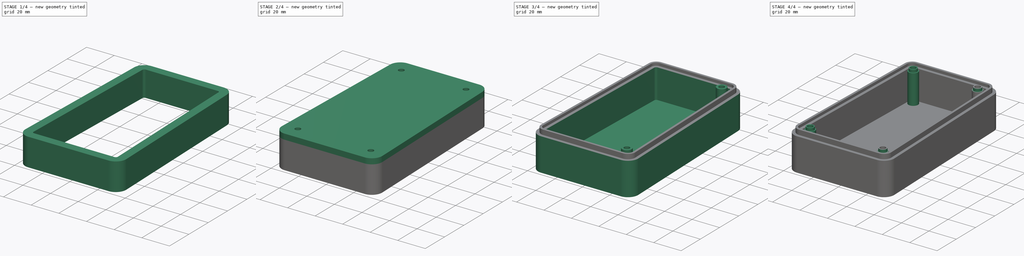
[diagram: build sequence overview — one tinted view per stage of 4, left to right]
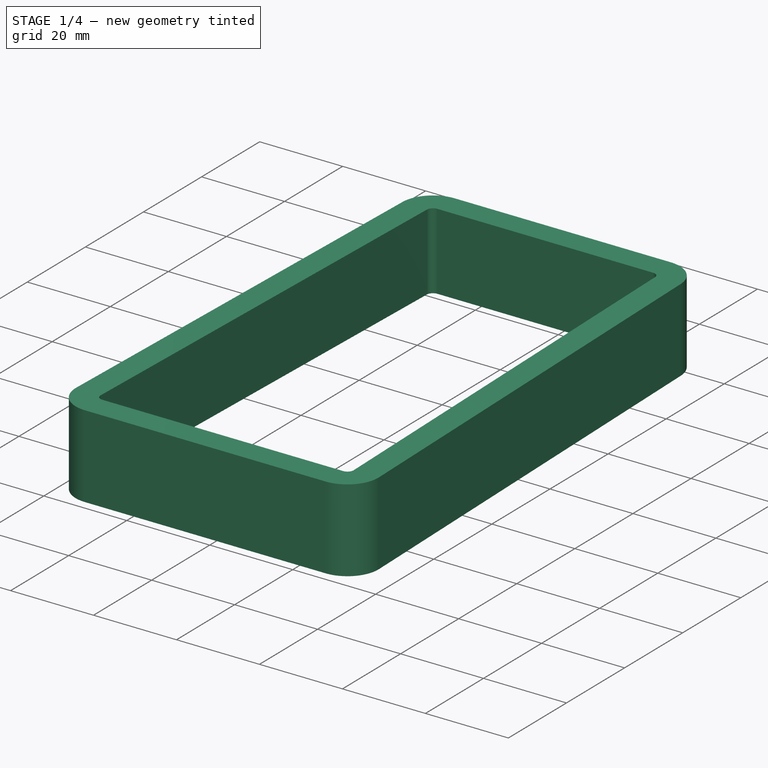
[diagram: stage 1 of 4 — iso view after this stage's code; geometry added in this stage tinted green]
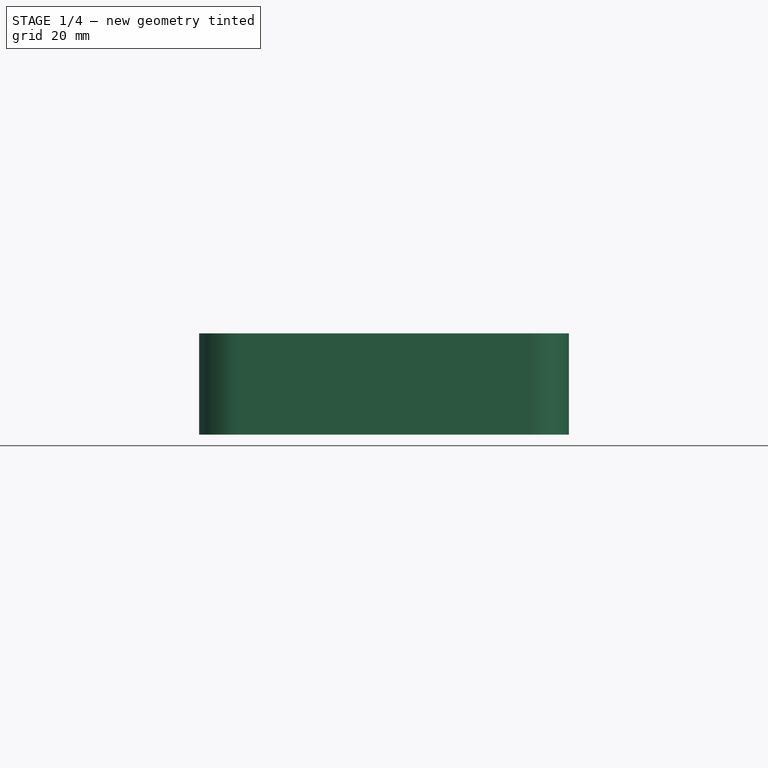
[diagram: stage 1 of 4 — front view after this stage's code; geometry added in this stage tinted green]
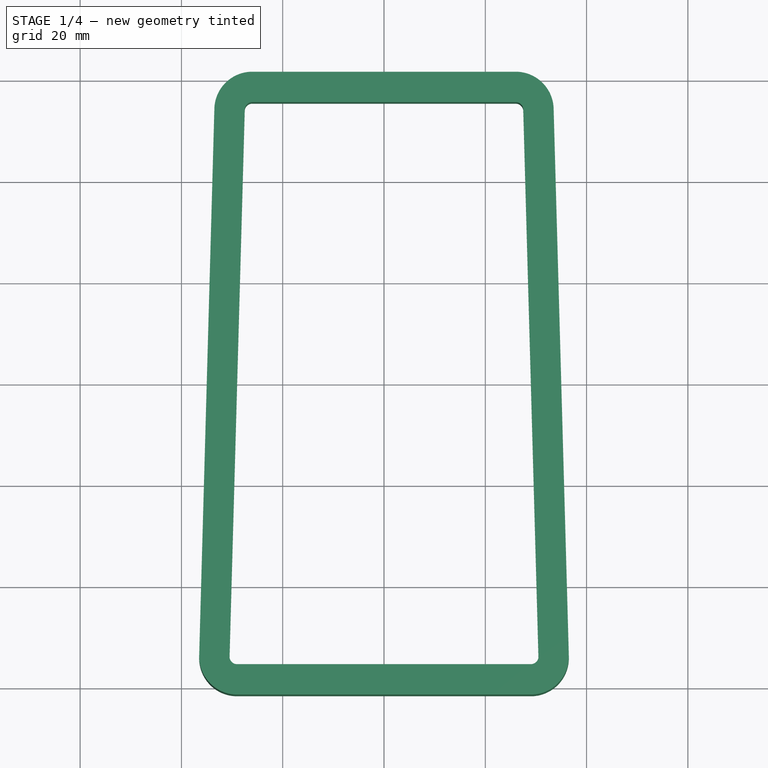
[diagram: stage 1 of 4 — top view after this stage's code; geometry added in this stage tinted green]
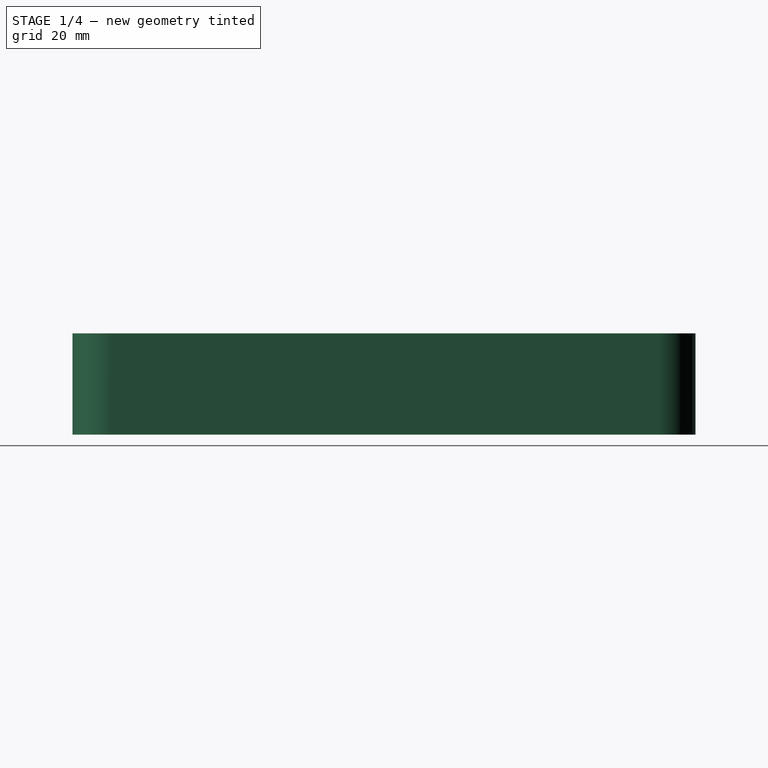
[diagram: stage 1 of 4 — right view after this stage's code; geometry added in this stage tinted green]
FCSTD DOCUMENT  (FreeCAD 0.20R29410 (Git))
Label: valve_box_rev_0.1
License: All rights reserved
LicenseURL: http://en.wikipedia.org/wiki/All_rights_reserved
objects: Sketcher::SketchObject×9, PartDesign::Mirrored×3, PartDesign::Pad×3, PartDesign::SubShapeBinder×3, PartDesign::AdditivePipe×2, PartDesign::Pocket×2, PartDesign::Body×2
note: 31 computed .brp shape members not serialized (recipe doc carries the construction recipe); baked Part::Feature solids carry a one-line shape summary decoded from their .brp

FEATURE [Sketcher::SketchObject] Sketch
  FullyConstrained = true
  MapMode = 5
  Support = -> [XY_Plane]
  sketch-geometry (12):
    g0: LineSegment StartX=-26 StartY=60 StartZ=0 EndX=0 EndY=60 EndZ=0
    g1: LineSegment StartX=0 StartY=60 StartZ=0 EndX=0 EndY=-60 EndZ=0
    g2: LineSegment StartX=0 StartY=-60 StartZ=0 EndX=-29 EndY=-60 EndZ=0
    g3: LineSegment StartX=-35 StartY=-54 StartZ=0 EndX=-32 EndY=54 EndZ=0
    g4: ArcOfCircle CenterX=-29 CenterY=-54 CenterZ=0 NormalX=0 NormalY=0 NormalZ=1 AngleXU=0 Radius=6 StartAngle=3.14159 EndAngle=4.71239
    g5: ArcOfCircle CenterX=-26 CenterY=54 CenterZ=0 NormalX=0 NormalY=0 NormalZ=1 AngleXU=0 Radius=6 StartAngle=1.5708 EndAngle=3.14159
    g6: LineSegment StartX=-26 StartY=60 StartZ=0 EndX=-32 EndY=60 EndZ=0
    g7: LineSegment StartX=-32 StartY=60 StartZ=0 EndX=-32 EndY=54 EndZ=0
    g8: LineSegment StartX=-32 StartY=54 StartZ=0 EndX=-26 EndY=60 EndZ=0
    g9: LineSegment StartX=-29 StartY=-60 StartZ=0 EndX=-35 EndY=-60 EndZ=0
    g10: LineSegment StartX=-35 StartY=-60 StartZ=0 EndX=-35 EndY=-54 EndZ=0
    g11: LineSegment StartX=-35 StartY=-54 StartZ=0 EndX=-29 EndY=-60 EndZ=0
  constraints (31):
    c: Coincident(g0,g1)
    c: Coincident(g1,g2)
    c: Horizontal(g0)
    c: Horizontal(g2)
    c: Vertical(g1)
    c: Symmetric(g1,g0,g-1)
    c: DistanceY(g1,g0) = 120
    c: Horizontal(g6)
    c: Coincident(g6,g7)
    c: Vertical(g7)
    c: DistanceX(g6,g0) = 32
    c: Coincident(g3,g7)
    c: Coincident(g0,g6)
    c: Coincident(g5,g0)
    c: Coincident(g5,g3)
    c: Coincident(g8,g3)
    c: Coincident(g8,g0)
    c: Symmetric(g5,g6,g8)
    c: Radius(g5) = 6
    c: Coincident(g2,g4)
    c: Coincident(g3,g4)
    c: Coincident(g2,g9)
    c: Horizontal(g9)
    c: Coincident(g9,g10)
    c: Coincident(g10,g3)
    c: Vertical(g10)
    c: DistanceX(g9,g1) = 35
    c: Coincident(g11,g3)
    c: Coincident(g11,g2)
    c: Symmetric(g9,g4,g11)
    c: Equal(g4,g5)
FEATURE [Sketcher::SketchObject] Sketch001
  ExternalGeometry = -> [Sketch]
  FullyConstrained = true
  MapMode = 5
  Placement = pos=(0,0,0) rot=(1,0,0;1.5708rad)
  Support = -> [XZ_Plane]
  sketch-geometry (8):
    g0: LineSegment StartX=-35 StartY=1.2e-14 StartZ=0 EndX=-35 EndY=20 EndZ=0
    g1: LineSegment StartX=-29 StartY=20 StartZ=0 EndX=-29 EndY=1.5 EndZ=0
    g2: LineSegment StartX=-29 StartY=1.5 StartZ=0 EndX=-31 EndY=1.5 EndZ=0
    g3: LineSegment StartX=-31 StartY=1.5 StartZ=0 EndX=-31 EndY=3.5 EndZ=0
    g4: LineSegment StartX=-31 StartY=3.5 StartZ=0 EndX=-33 EndY=3.5 EndZ=0
    g5: LineSegment StartX=-33 StartY=3.5 StartZ=0 EndX=-33 EndY=0 EndZ=0
    g6: LineSegment StartX=-33 StartY=0 StartZ=0 EndX=-35 EndY=1.2e-14 EndZ=0
    g7: LineSegment StartX=-35 StartY=20 StartZ=0 EndX=-29 EndY=20 EndZ=0
  constraints (23):
    c: Coincident(g0,g-3)
    c: Vertical(g0)
    c: Vertical(g1)
    c: Coincident(g1,g2)
    c: Horizontal(g2)
    c: Coincident(g2,g3)
    c: Vertical(g3)
    c: Coincident(g3,g4)
    c: Horizontal(g4)
    c: Coincident(g4,g5)
    c: PointOnObject(g5,g-1)
    c: Vertical(g5)
    c: Coincident(g5,g6)
    c: Coincident(g6,g0)
    c: Equal(g6,g4)
    c: Equal(g4,g2)
    c: DistanceX(g6,g6) = 2
    c: DistanceY(g5,g5) = 3.5
    c: DistanceY(g3,g3) = 2
    c: Coincident(g7,g0)
    c: Coincident(g7,g1)
    c: Horizontal(g7)
    c: DistanceY(g0,g0) = 20
FEATURE [PartDesign::AdditivePipe] AdditivePipe
  AuxilleryCurvelinear = true
  AuxillerySpineTangent = false
  Binormal = (0,0,0)
  Mode = 0
  Placement = pos=(0,0,0) rot=(1,0,0;1.5708rad)
  Profile = -> Sketch001
  Spine = -> Sketch [Edge3,Edge4,Edge5,Edge6,Edge1]
  SpineTangent = false
  Transformation = 0
  Transition = 0
FEATURE [PartDesign::Mirrored] Mirrored
  BaseFeature = -> AdditivePipe
  MirrorPlane = -> Sketch001 [V_Axis]
  Originals = -> [AdditivePipe]
  Placement = pos=(0,0,0) rot=(1,0,0;1.5708rad)
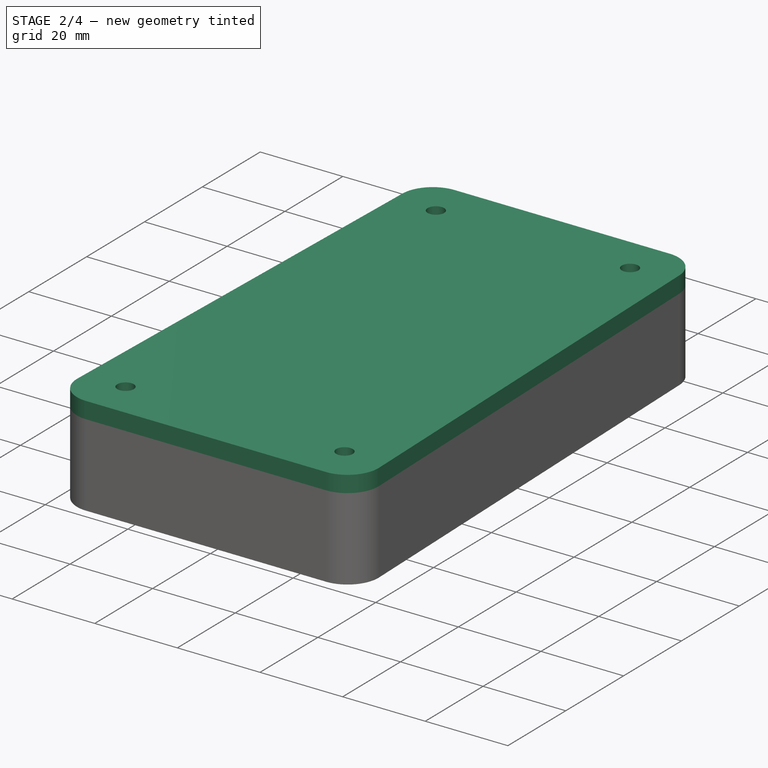
[diagram: stage 2 of 4 — iso view after this stage's code; geometry added in this stage tinted green]
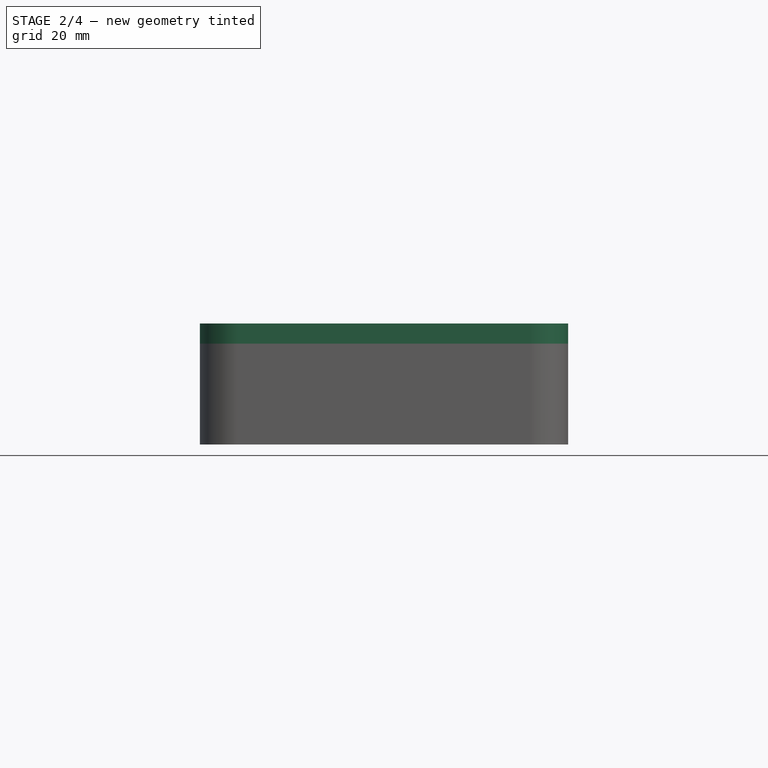
[diagram: stage 2 of 4 — front view after this stage's code; geometry added in this stage tinted green]
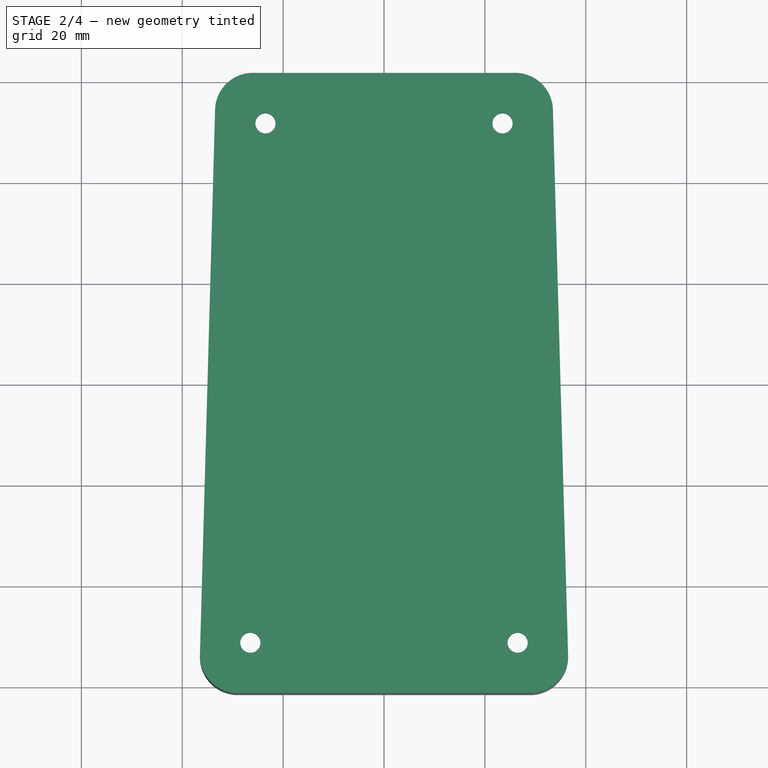
[diagram: stage 2 of 4 — top view after this stage's code; geometry added in this stage tinted green]
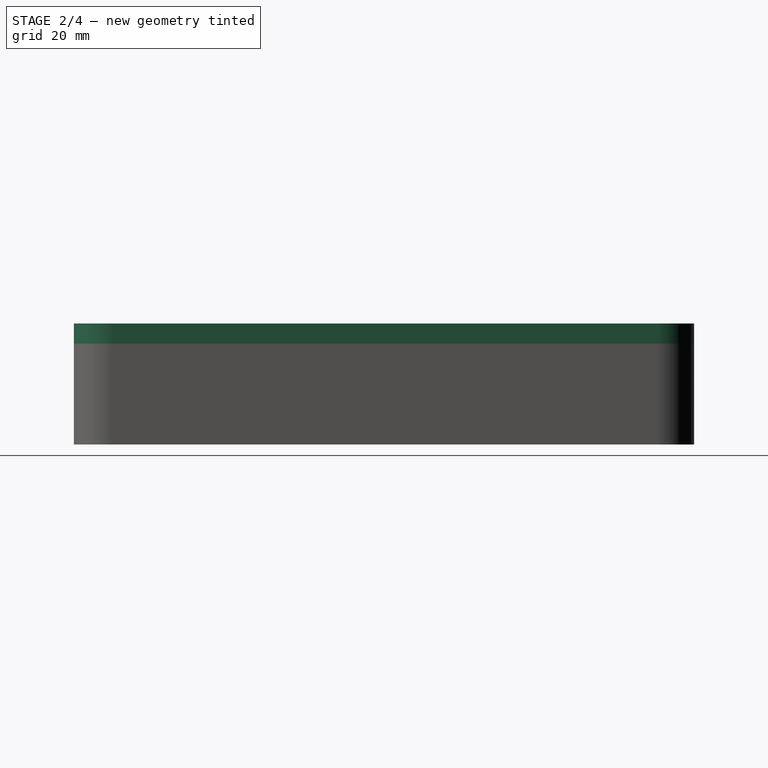
[diagram: stage 2 of 4 — right view after this stage's code; geometry added in this stage tinted green]
FEATURE [Sketcher::SketchObject] Sketch002
  ExternalGeometry = -> [Mirrored]
  FullyConstrained = true
  MapMode = 5
  Placement = pos=(0,0,20) rot=(0,0,1;3.14159rad)
  Support = -> [Mirrored]
  sketch-geometry (8):
    g0: LineSegment StartX=-33.5 StartY=-54 StartZ=0 EndX=-36.5 EndY=54 EndZ=0
    g1: LineSegment StartX=-29 StartY=61.5 StartZ=0 EndX=29 EndY=61.5 EndZ=0
    g2: LineSegment StartX=36.5 StartY=54 StartZ=0 EndX=33.5 EndY=-54 EndZ=0
    g3: LineSegment StartX=26 StartY=-61.5 StartZ=0 EndX=-26 EndY=-61.5 EndZ=0
    g4: ArcOfCircle CenterX=-29 CenterY=54 CenterZ=0 NormalX=0 NormalY=0 NormalZ=1 AngleXU=0 Radius=7.5 StartAngle=1.5708 EndAngle=3.14159
    g5: ArcOfCircle CenterX=29 CenterY=54 CenterZ=0 NormalX=0 NormalY=0 NormalZ=1 AngleXU=0 Radius=7.5 StartAngle=-3.4968e-12 EndAngle=1.5708
    g6: ArcOfCircle CenterX=26 CenterY=-54 CenterZ=0 NormalX=0 NormalY=0 NormalZ=1 AngleXU=0 Radius=7.5 StartAngle=4.71239 EndAngle=6.28319
    g7: ArcOfCircle CenterX=-26 CenterY=-54 CenterZ=0 NormalX=0 NormalY=0 NormalZ=1 AngleXU=0 Radius=7.5 StartAngle=3.14159 EndAngle=4.71239
  constraints (20):
    c: Coincident(g0,g-12)
    c: Coincident(g0,g-4)
    c: Coincident(g1,g-5)
    c: Coincident(g1,g-7)
    c: Coincident(g2,g-8)
    c: Coincident(g2,g-9)
    c: Coincident(g3,g-10)
    c: Coincident(g3,g-12)
    c: Coincident(g4,g0)
    c: Coincident(g4,g1)
    c: Tangent(g4,g-4)
    c: Coincident(g5,g1)
    c: Coincident(g5,g2)
    c: Tangent(g5,g-7)
    c: Coincident(g6,g3)
    c: Coincident(g6,g2)
    c: Tangent(g6,g-9)
    c: Coincident(g7,g3)
    c: Coincident(g7,g0)
    c: Tangent(g7,g-12)
FEATURE [PartDesign::Pad] Pad
  BaseFeature = -> Mirrored
  Direction = (0,0,1)
  Length = 4
  Length2 = 10
  Placement = pos=(0,0,0) rot=(1,0,0;1.5708rad)
  Profile = -> Sketch002
  ReferenceAxis = -> Sketch002 [N_Axis]
  Type = 0
FEATURE [Sketcher::SketchObject] Sketch006
  ExternalGeometry = -> [Pad]
  FullyConstrained = false
  MapMode = 5
  Placement = pos=(0,0,24) rot=(0,0,1;3.14159rad)
  Support = -> [Pad]
  sketch-geometry (2):
    g0: Circle CenterX=-23.5 CenterY=-51.5 CenterZ=0 NormalX=0 NormalY=0 NormalZ=1 AngleXU=0 Radius=2
    g1: Circle CenterX=-26.5 CenterY=51.5 CenterZ=0 NormalX=0 NormalY=0 NormalZ=1 AngleXU=0 Radius=2
  constraints (5):
    c: Diameter(g0) = 4
    c: DistanceX(g-3,g0) = 10
    c: DistanceY(g-5,g0) = 10
    c: Equal(g1,g0)
    c: DistanceX(g-3,g1) = 10
FEATURE [PartDesign::Pocket] Pocket
  BaseFeature = -> Pad
  Direction = (0,0,-1)
  Length = 5
  Length2 = 5
  Placement = pos=(0,0,0) rot=(1,0,0;1.5708rad)
  Profile = -> Sketch006
  ReferenceAxis = -> Sketch006 [N_Axis]
  Type = 2
FEATURE [PartDesign::Mirrored] Mirrored001
  BaseFeature = -> Pocket
  MirrorPlane = -> Sketch006 [V_Axis]
  Originals = -> [Pocket]
  Placement = pos=(0,0,0) rot=(1,0,0;1.5708rad)
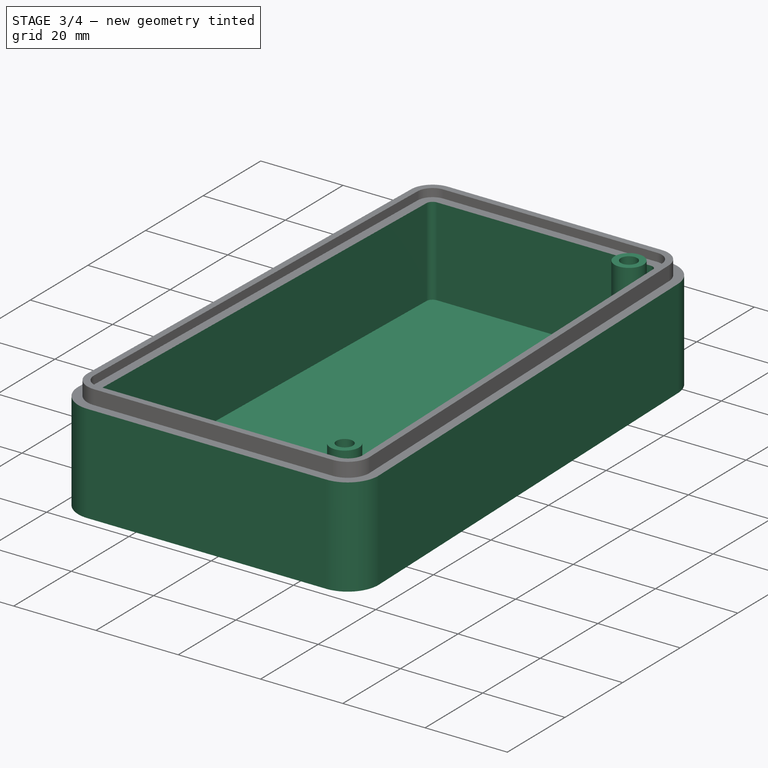
[diagram: stage 3 of 4 — iso view after this stage's code; geometry added in this stage tinted green]
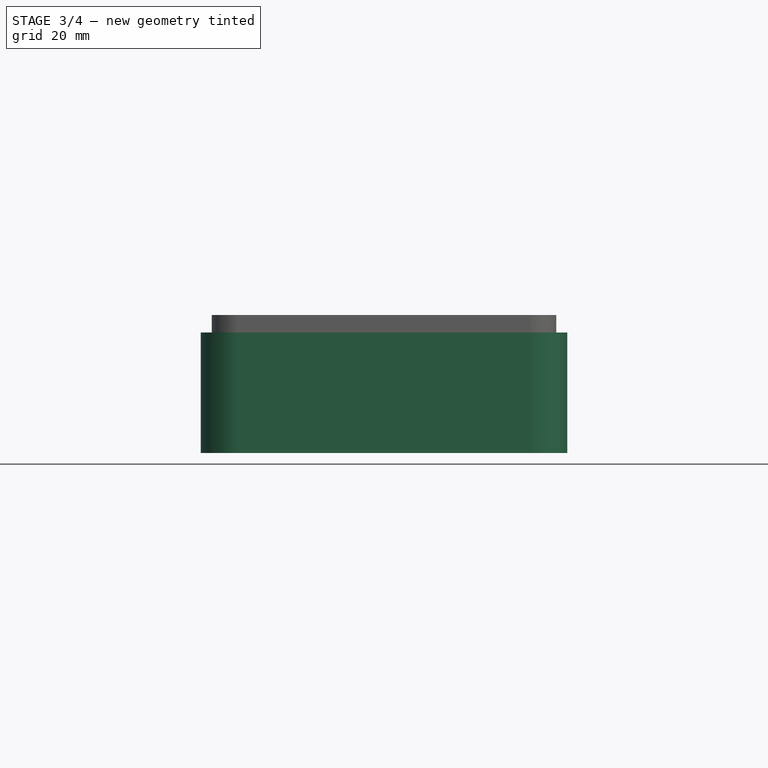
[diagram: stage 3 of 4 — front view after this stage's code; geometry added in this stage tinted green]
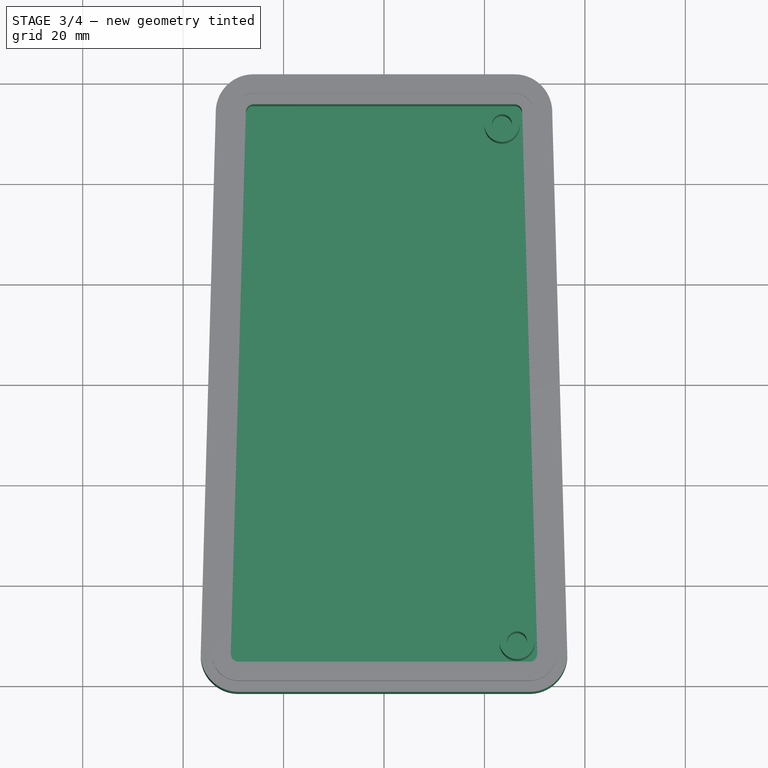
[diagram: stage 3 of 4 — top view after this stage's code; geometry added in this stage tinted green]
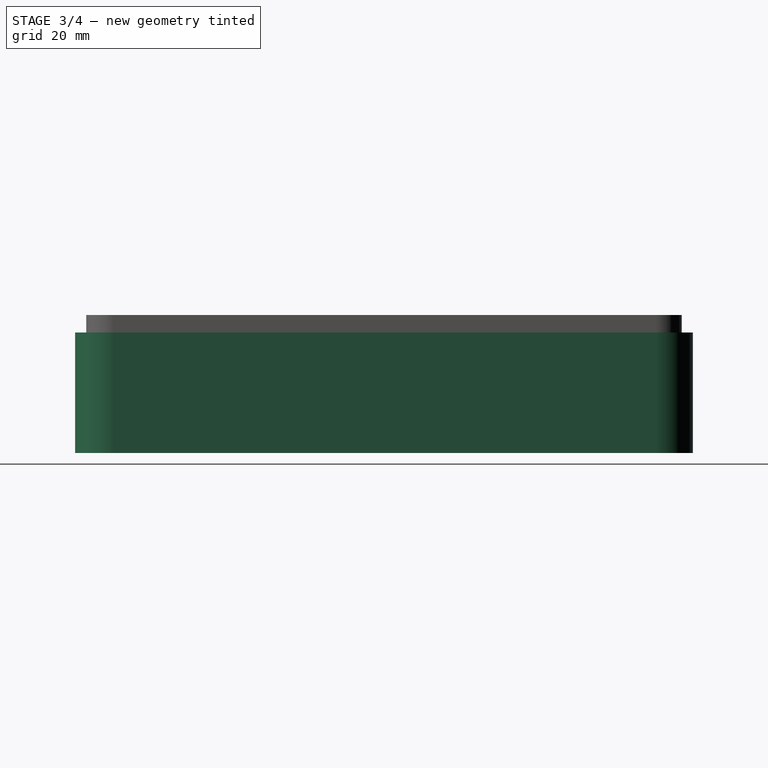
[diagram: stage 3 of 4 — right view after this stage's code; geometry added in this stage tinted green]
FEATURE [PartDesign::SubShapeBinder] Binder  label="BottomView"
  BindCopyOnChange = 0
  BindMode = 0
  ClaimChildren = false
  Context = -> Body001 [Binder.]
  Fuse = false
  MakeFace = true
  OffsetFill = false
  OffsetIntersection = false
  OffsetJoinType = 0
  OffsetOpenResult = false
  PartialLoad = false
  Relative = true
  Support = -> [Body[Mirrored.Face8,Mirrored.Face2,Mirrored.Face7,Mirrored.Face17,Mirrored.Face31,Mirrored.Face47,Mirrored.Face62,Mirrored.Face48]]
  _Version = 2
FEATURE [Sketcher::SketchObject] Sketch003
  ExternalGeometry = -> [Binder]
  FullyConstrained = true
  MapMode = 5
  Support = -> [XY_Plane001]
  sketch-geometry (8):
    g0: LineSegment StartX=-36.5 StartY=-54 StartZ=0 EndX=-33.5 EndY=54 EndZ=0
    g1: LineSegment StartX=-26 StartY=61.5 StartZ=0 EndX=26 EndY=61.5 EndZ=0
    g2: LineSegment StartX=33.5 StartY=54 StartZ=0 EndX=36.5 EndY=-54 EndZ=0
    g3: LineSegment StartX=29 StartY=-61.5 StartZ=0 EndX=-29 EndY=-61.5 EndZ=0
    g4: ArcOfCircle CenterX=-29 CenterY=-54 CenterZ=0 NormalX=0 NormalY=0 NormalZ=1 AngleXU=0 Radius=7.5 StartAngle=3.14159 EndAngle=4.71239
    g5: ArcOfCircle CenterX=-26 CenterY=54 CenterZ=0 NormalX=0 NormalY=0 NormalZ=1 AngleXU=0 Radius=7.5 StartAngle=1.5708 EndAngle=3.14159
    g6: ArcOfCircle CenterX=26 CenterY=54 CenterZ=0 NormalX=0 NormalY=0 NormalZ=1 AngleXU=0 Radius=7.5 StartAngle=8.88e-14 EndAngle=1.5708
    g7: ArcOfCircle CenterX=29 CenterY=-54 CenterZ=0 NormalX=0 NormalY=0 NormalZ=1 AngleXU=0 Radius=7.5 StartAngle=4.71239 EndAngle=6.28319
  constraints (20):
    c: Coincident(g0,g-12)
    c: Coincident(g0,g-4)
    c: Coincident(g1,g-5)
    c: Coincident(g1,g-7)
    c: Coincident(g2,g-8)
    c: Coincident(g2,g-9)
    c: Coincident(g3,g-10)
    c: Coincident(g3,g-12)
    c: Coincident(g4,g3)
    c: Coincident(g4,g0)
    c: Tangent(g4,g-12)
    c: Coincident(g5,g0)
    c: Coincident(g5,g1)
    c: Tangent(g5,g-4)
    c: Coincident(g6,g1)
    c: Coincident(g6,g2)
    c: Tangent(g6,g-7)
    c: Coincident(g7,g2)
    c: Coincident(g7,g3)
    c: Tangent(g7,g-9)
FEATURE [PartDesign::SubShapeBinder] Binder001  label="RightView"
  BindCopyOnChange = 0
  BindMode = 0
  ClaimChildren = false
  Context = -> Body001 [Binder001.]
  Fuse = false
  MakeFace = true
  OffsetFill = false
  OffsetIntersection = false
  OffsetJoinType = 0
  OffsetOpenResult = false
  PartialLoad = false
  Relative = true
  Support = -> [Body[AdditivePipe.Face1]]
  _Version = 2
FEATURE [Sketcher::SketchObject] Sketch004
  ExternalGeometry = -> [Binder001,Binder]
  FullyConstrained = true
  MapMode = 5
  Placement = pos=(0,0,0) rot=(0.57735,0.57735,0.57735;2.0944rad)
  Support = -> [YZ_Plane001]
  sketch-geometry (8):
    g0: LineSegment StartX=-61.5 StartY=-0.2 StartZ=0 EndX=-59.3 EndY=-0.2 EndZ=0
    g1: LineSegment StartX=-59.3 StartY=-0.2 StartZ=0 EndX=-59.3 EndY=3.3 EndZ=0
    g2: LineSegment StartX=-59.3 StartY=3.3 StartZ=0 EndX=-57.7 EndY=3.3 EndZ=0
    g3: LineSegment StartX=-57.7 StartY=3.3 StartZ=0 EndX=-57.7 EndY=1.3 EndZ=0
    g4: LineSegment StartX=-57.7 StartY=1.3 StartZ=0 EndX=-55.5 EndY=1.3 EndZ=0
    g5: LineSegment StartX=-55.5 StartY=1.3 StartZ=0 EndX=-55.5 EndY=-20.2 EndZ=0
    g6: LineSegment StartX=-55.5 StartY=-20.2 StartZ=0 EndX=-61.5 EndY=-20.2 EndZ=0
    g7: LineSegment StartX=-61.5 StartY=-20.2 StartZ=0 EndX=-61.5 EndY=-0.2 EndZ=0
  constraints (24):
    c: Horizontal(g0)
    c: Coincident(g0,g1)
    c: Vertical(g1)
    c: Coincident(g1,g2)
    c: Horizontal(g2)
    c: Coincident(g2,g3)
    c: Vertical(g3)
    c: Coincident(g3,g4)
    c: Horizontal(g4)
    c: Coincident(g4,g5)
    c: Vertical(g5)
    c: Coincident(g5,g6)
    c: Horizontal(g6)
    c: Coincident(g6,g7)
    c: Coincident(g7,g0)
    c: Vertical(g7)
    c: Vertical(g-7,g0)
    c: DistanceY(g0,g-7) = 0.2
    c: Vertical(g4,g-3)
    c: DistanceY(g4,g-3) = 0.2
    c: DistanceX(g3,g-4) = 0.2
    c: DistanceY(g2,g-5) = 0.2
    c: DistanceX(g-6,g0) = 0.2
    c: DistanceY(g7,g7) = 20
FEATURE [PartDesign::AdditivePipe] AdditivePipe001
  AuxilleryCurvelinear = true
  AuxillerySpineTangent = false
  Binormal = (0,0,0)
  Mode = 0
  Placement = pos=(0,0,0) rot=(0.57735,0.57735,0.57735;2.0944rad)
  Profile = -> Sketch004
  Spine = -> Sketch003 [Edge1,Edge2,Edge3,Edge4,Edge5,Edge6,Edge7,Edge8]
  SpineTangent = false
  Transformation = 0
  Transition = 0
FEATURE [Sketcher::SketchObject] Sketch005
  ExternalGeometry = -> [AdditivePipe001]
  FullyConstrained = true
  MapMode = 5
  Placement = pos=(6.7e-15,-6.6e-15,-20.2) rot=(0.707107,0.707107,0;3.14159rad)
  Support = -> [AdditivePipe001]
  sketch-geometry (8):
    g0: LineSegment StartX=-54 StartY=36.5 StartZ=0 EndX=54 EndY=33.5 EndZ=0
    g1: LineSegment StartX=61.5 StartY=26 StartZ=0 EndX=61.5 EndY=-26 EndZ=0
    g2: LineSegment StartX=54 StartY=-33.5 StartZ=0 EndX=-54 EndY=-36.5 EndZ=0
    g3: LineSegment StartX=-61.5 StartY=-29 StartZ=0 EndX=-61.5 EndY=29 EndZ=0
    g4: ArcOfCircle CenterX=-54 CenterY=29 CenterZ=0 NormalX=0 NormalY=0 NormalZ=1 AngleXU=0 Radius=7.5 StartAngle=1.5708 EndAngle=3.14159
    g5: ArcOfCircle CenterX=54 CenterY=26 CenterZ=0 NormalX=0 NormalY=0 NormalZ=1 AngleXU=0 Radius=7.5 StartAngle=-4.4e-15 EndAngle=1.5708
    g6: ArcOfCircle CenterX=54 CenterY=-26 CenterZ=0 NormalX=0 NormalY=0 NormalZ=1 AngleXU=0 Radius=7.5 StartAngle=4.71239 EndAngle=6.28319
    g7: ArcOfCircle CenterX=-54 CenterY=-29 CenterZ=0 NormalX=0 NormalY=0 NormalZ=1 AngleXU=0 Radius=7.5 StartAngle=3.14159 EndAngle=4.71239
  constraints (20):
    c: Coincident(g0,g-4)
    c: Coincident(g0,g-10)
    c: Coincident(g1,g-10)
    c: Coincident(g1,g-9)
    c: Coincident(g2,g-8)
    c: Coincident(g2,g-7)
    c: Coincident(g3,g-6)
    c: Coincident(g3,g-5)
    c: Coincident(g4,g3)
    c: Coincident(g4,g0)
    c: Tangent(g4,g-4)
    c: Coincident(g5,g0)
    c: Coincident(g5,g1)
    c: Tangent(g5,g-10)
    c: Coincident(g6,g2)
    c: Coincident(g6,g1)
    c: Tangent(g6,g-8)
    c: Coincident(g7,g2)
    c: Coincident(g7,g3)
    c: Tangent(g7,g-6)
FEATURE [PartDesign::Pad] Pad001
  BaseFeature = -> AdditivePipe001
  Direction = (3e-16,-3e-16,-1)
  Length = 4
  Length2 = 10
  Placement = pos=(0,0,0) rot=(0.57735,0.57735,0.57735;2.0944rad)
  Profile = -> Sketch005
  ReferenceAxis = -> Sketch005 [N_Axis]
  Type = 0
FEATURE [PartDesign::Body] Body  label="TopShell"
  Group = -> [Sketch,Sketch001,AdditivePipe,Mirrored,Sketch002,Pad,Sketch006,Pocket,Mirrored001]
  Origin = -> Origin
  Tip = -> Mirrored001
FEATURE [PartDesign::SubShapeBinder] Binder002  label="TopShellCeil"
  BindCopyOnChange = 0
  BindMode = 0
  ClaimChildren = false
  Context = -> Body001 [Binder002.]
  Fuse = false
  MakeFace = true
  OffsetFill = false
  OffsetIntersection = false
  OffsetJoinType = 0
  OffsetOpenResult = false
  PartialLoad = false
  Relative = true
  Support = -> [Body[Mirrored001.Face40]]
  _Version = 2
FEATURE [Sketcher::SketchObject] Sketch007
  ExternalGeometry = -> [Binder002]
  FullyConstrained = true
  MapMode = 5
  Placement = pos=(1.3e-14,-8.8e-15,-20.2) rot=(0,0,-1;1.5708rad)
  Support = -> [Pad001]
  sketch-geometry (4):
    g0: Circle CenterX=-51.5 CenterY=23.5 CenterZ=0 NormalX=0 NormalY=0 NormalZ=1 AngleXU=0 Radius=2
    g1: Circle CenterX=51.5 CenterY=26.5 CenterZ=0 NormalX=0 NormalY=0 NormalZ=1 AngleXU=0 Radius=2
    g2: Circle CenterX=-51.5 CenterY=23.5 CenterZ=0 NormalX=0 NormalY=0 NormalZ=1 AngleXU=0 Radius=3.5
    g3: Circle CenterX=51.5 CenterY=26.5 CenterZ=0 NormalX=0 NormalY=0 NormalZ=1 AngleXU=0 Radius=3.5
  constraints (8):
    c: Coincident(g0,g-3)
    c: Coincident(g1,g-4)
    c: Equal(g1,g-4)
    c: Equal(g0,g-3)
    c: Coincident(g2,g0)
    c: Diameter(g2) = 7
    c: Coincident(g3,g1)
    c: Equal(g3,g2)
FEATURE [PartDesign::Pad] Pad002
  BaseFeature = -> Pad001
  Direction = (-6e-16,4e-16,1)
  Length = 10
  Length2 = 10
  Placement = pos=(0,0,0) rot=(0.57735,0.57735,0.57735;2.0944rad)
  Profile = -> Sketch007
  ReferenceAxis = -> Sketch007 [N_Axis]
  Type = 3
  UpToFace = -> Pad001 [Face50]
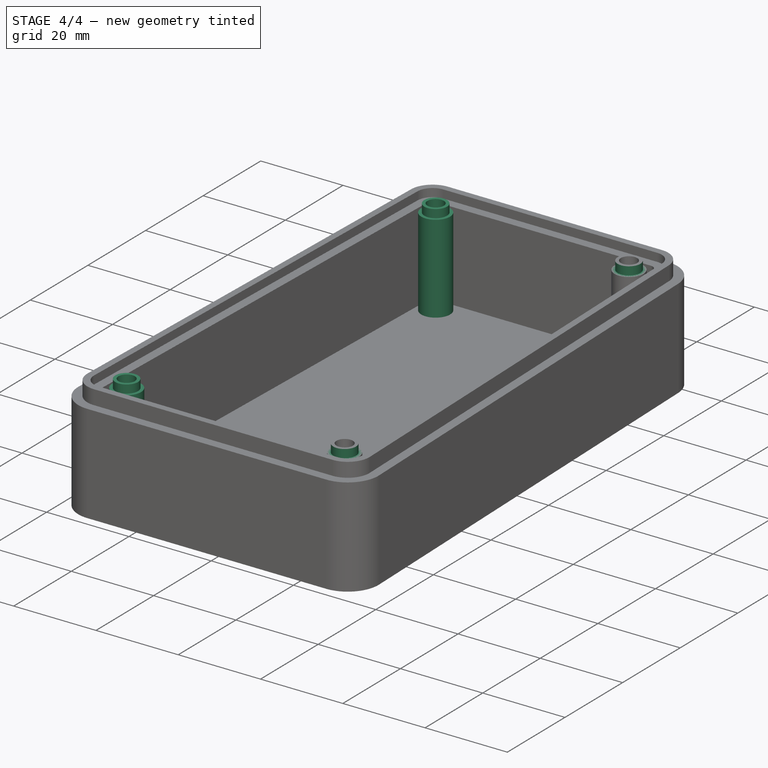
[diagram: stage 4 of 4 — iso view after this stage's code; geometry added in this stage tinted green]
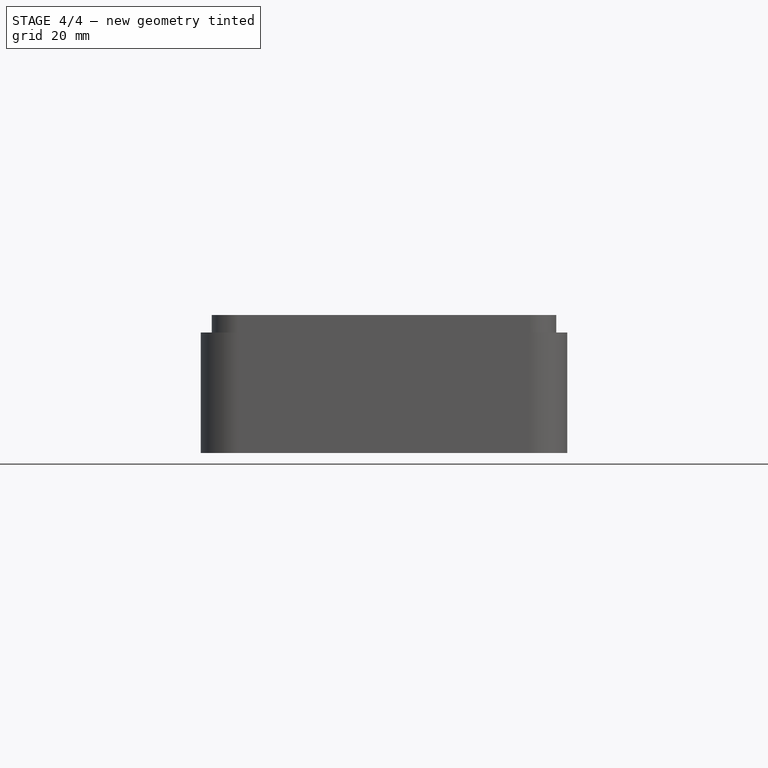
[diagram: stage 4 of 4 — front view after this stage's code; geometry added in this stage tinted green]
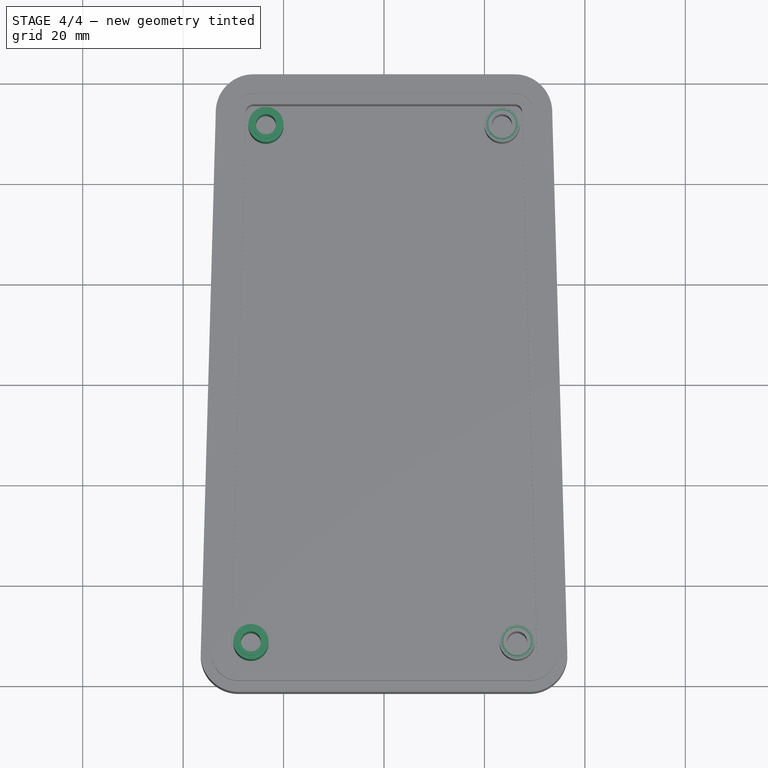
[diagram: stage 4 of 4 — top view after this stage's code; geometry added in this stage tinted green]
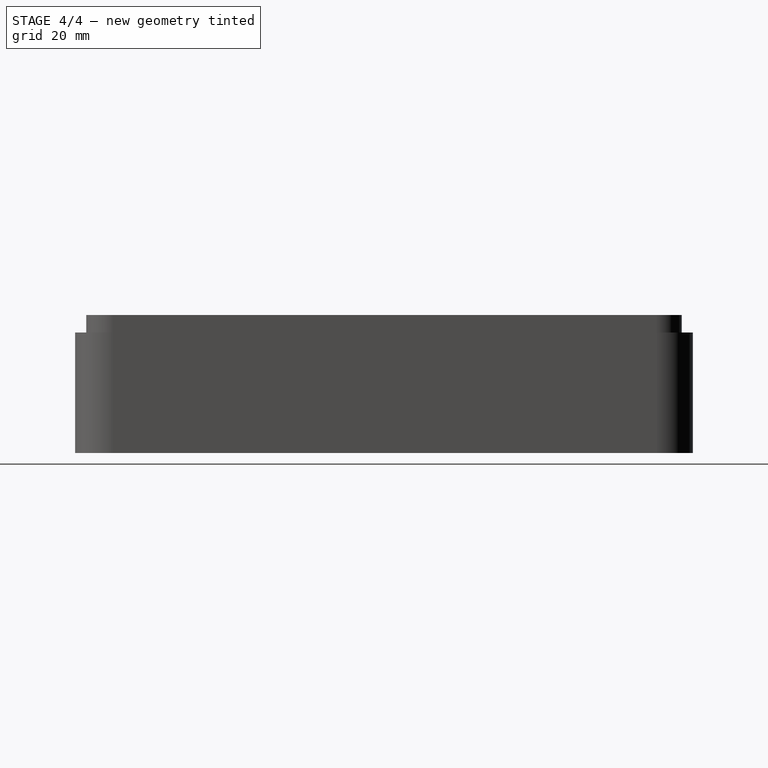
[diagram: stage 4 of 4 — right view after this stage's code; geometry added in this stage tinted green]
FEATURE [PartDesign::Mirrored] Mirrored002
  BaseFeature = -> Pad002
  MirrorPlane = -> YZ_Plane001
  Originals = -> [Pad002]
  Placement = pos=(0,0,0) rot=(0.57735,0.57735,0.57735;2.0944rad)
FEATURE [Sketcher::SketchObject] Sketch008
  ExternalGeometry = -> [Mirrored002]
  FullyConstrained = true
  MapMode = 5
  Placement = pos=(0,-4e-16,3.3) rot=(0,0,-1;1.5708rad)
  Support = -> [Mirrored002]
  sketch-geometry (8):
    g0: Circle CenterX=-51.5 CenterY=23.5 CenterZ=0 NormalX=0 NormalY=0 NormalZ=1 AngleXU=0 Radius=3.5
    g1: Circle CenterX=51.5 CenterY=26.5 CenterZ=0 NormalX=0 NormalY=0 NormalZ=1 AngleXU=0 Radius=3.5
    g2: Circle CenterX=51.5 CenterY=-26.5 CenterZ=0 NormalX=0 NormalY=0 NormalZ=1 AngleXU=0 Radius=3.5
    g3: Circle CenterX=-51.5 CenterY=-23.5 CenterZ=0 NormalX=0 NormalY=0 NormalZ=1 AngleXU=0 Radius=3.5
    g4: Circle CenterX=-51.5 CenterY=23.5 CenterZ=0 NormalX=0 NormalY=0 NormalZ=1 AngleXU=0 Radius=2.75
    g5: Circle CenterX=51.5 CenterY=26.5 CenterZ=0 NormalX=0 NormalY=0 NormalZ=1 AngleXU=0 Radius=2.75
    g6: Circle CenterX=51.5 CenterY=-26.5 CenterZ=0 NormalX=0 NormalY=0 NormalZ=1 AngleXU=0 Radius=2.75
    g7: Circle CenterX=-51.5 CenterY=-23.5 CenterZ=0 NormalX=0 NormalY=0 NormalZ=1 AngleXU=0 Radius=2.75
  constraints (16):
    c: Coincident(g0,g-3)
    c: Equal(g0,g-3)
    c: Coincident(g1,g-4)
    c: Coincident(g2,g-5)
    c: Coincident(g3,g-6)
    c: Equal(g3,g0)
    c: Equal(g0,g1)
    c: Equal(g1,g2)
    c: Coincident(g4,g0)
    c: Diameter(g4) = 5.5
    c: Coincident(g5,g1)
    c: Coincident(g6,g2)
    c: Coincident(g7,g3)
    c: Equal(g4,g7)
    c: Equal(g7,g5)
    c: Equal(g5,g6)
FEATURE [PartDesign::Pocket] Pocket001
  BaseFeature = -> Mirrored002
  Direction = (0,1e-16,-1)
  Length = 2
  Length2 = 5
  Placement = pos=(0,0,0) rot=(0.57735,0.57735,0.57735;2.0944rad)
  Profile = -> Sketch008
  ReferenceAxis = -> Sketch008 [N_Axis]
  Type = 0
FEATURE [PartDesign::Body] Body001  label="BottomShell"
  Group = -> [Sketch003,Binder,Binder001,Sketch004,AdditivePipe001,Sketch005,Pad001,Binder002,Sketch007,Pad002,Mirrored002,Sketch008,Pocket001]
  Origin = -> Origin001
  Tip = -> Pocket001
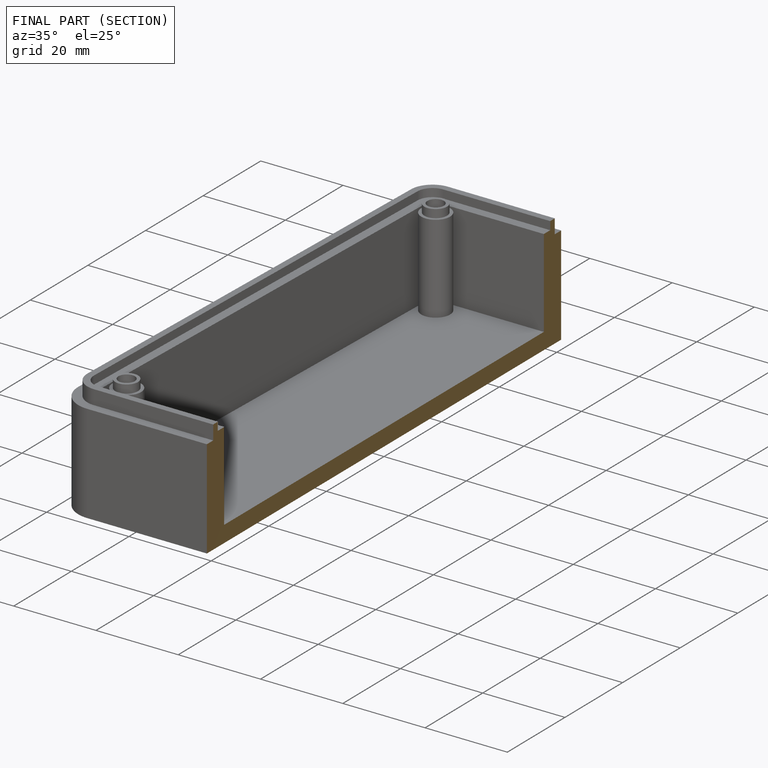
[diagram: finished part — half-section view (interior)]
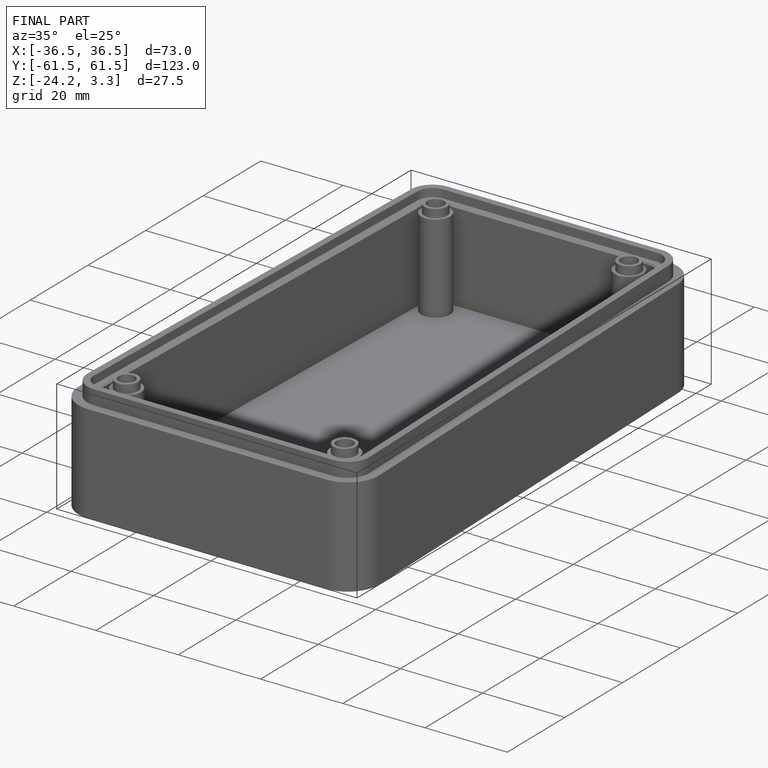
[diagram: finished part — iso view with bounding-box wireframe]
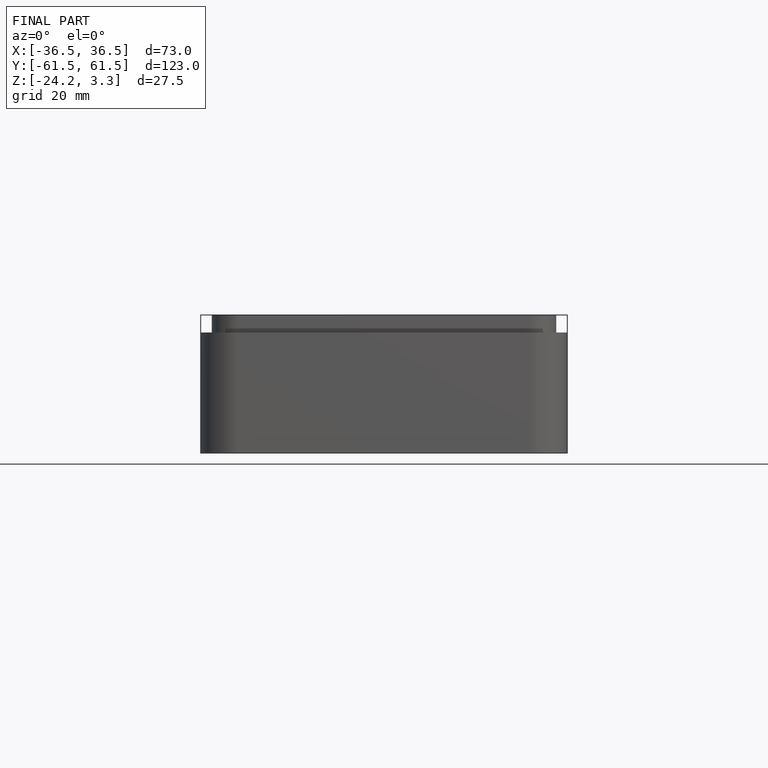
[diagram: finished part — front view with bounding-box wireframe]
